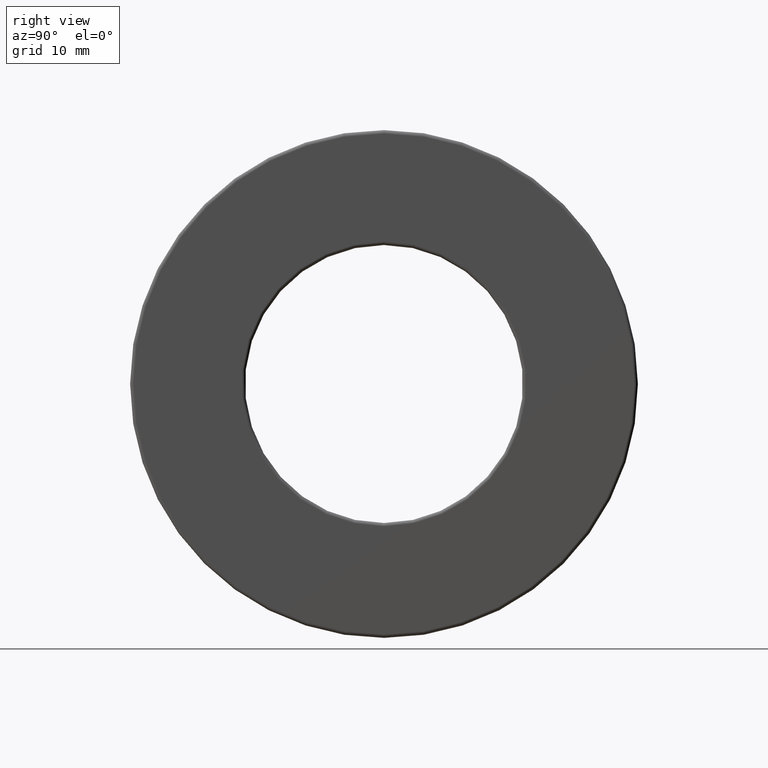
[diagram: clean part render]
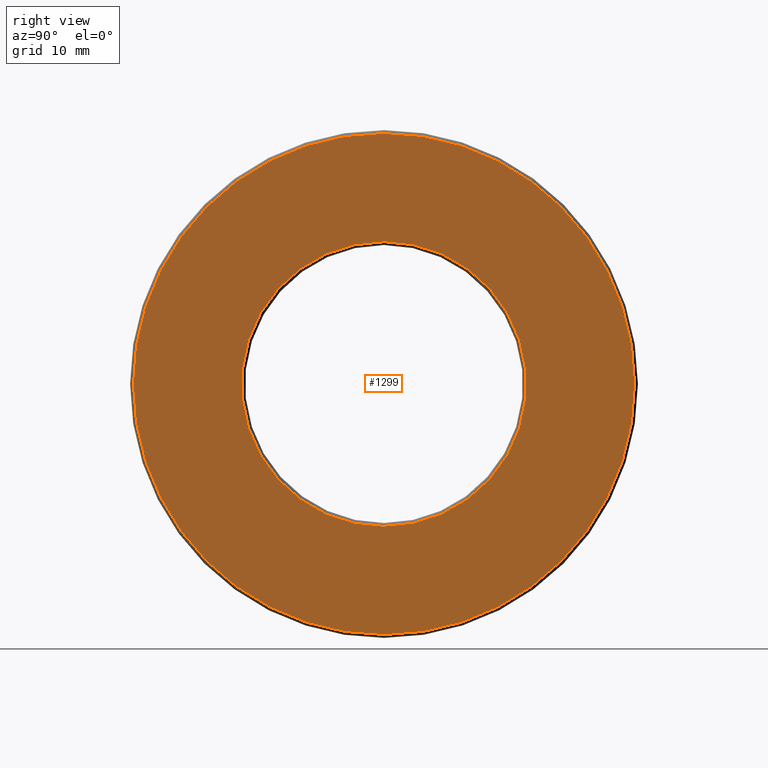
[diagram: same view with one face highlighted and labeled with its STEP entity id]
A machine part, right view. The second image highlights one B-rep face of the part: STEP entity #1299.
In plain terms, the highlighted planar face has unit normal (1, 0, 0).
Its self-contained STEP definition (entity closure, byte-faithful):
#31 = FACE_BOUND ( 'NONE', #236, .T. ) ;
#61 = DIRECTION ( 'NONE',  ( 0.0000000000000000000, 0.0000000000000000000, -1.000000000000000000 ) ) ;
#66 = CARTESIAN_POINT ( 'NONE',  ( 0.4060000000000001400, 4.388250387448826900E-017, 0.0000000000000000000 ) ) ;
#72 = PLANE ( 'NONE',  #988 ) ;
#201 = EDGE_CURVE ( 'NONE', #779, #779, #581, .T. ) ;
#236 = EDGE_LOOP ( 'NONE', ( #1217 ) ) ;
#486 = CIRCLE ( 'NONE', #1424, 0.8325000000000000200 ) ;
#509 = ORIENTED_EDGE ( 'NONE', *, *, #201, .F. ) ;
#530 = DIRECTION ( 'NONE',  ( 1.000000000000000000, 0.0000000000000000000, 0.0000000000000000000 ) ) ;
#581 = CIRCLE ( 'NONE', #898, 1.464375000000000400 ) ;
#704 = DIRECTION ( 'NONE',  ( 0.0000000000000000000, 0.0000000000000000000, 1.000000000000000000 ) ) ;
#779 = VERTEX_POINT ( 'NONE', #1005 ) ;
#872 = VERTEX_POINT ( 'NONE', #1462 ) ;
#898 = AXIS2_PLACEMENT_3D ( 'NONE', #1141, #1256, #704 ) ;
#908 = EDGE_CURVE ( 'NONE', #872, #872, #486, .T. ) ;
#988 = AXIS2_PLACEMENT_3D ( 'NONE', #66, #530, #61 ) ;
#990 = CARTESIAN_POINT ( 'NONE',  ( 0.4060000000000001900, 0.0000000000000000000, 0.0000000000000000000 ) ) ;
#1001 = DIRECTION ( 'NONE',  ( -1.000000000000000000, -0.0000000000000000000, -0.0000000000000000000 ) ) ;
#1005 = CARTESIAN_POINT ( 'NONE',  ( 0.4060000000000001400, 0.0000000000000000000, 1.464375000000000400 ) ) ;
#1057 = FACE_OUTER_BOUND ( 'NONE', #1298, .T. ) ;
#1106 = DIRECTION ( 'NONE',  ( 0.0000000000000000000, 0.0000000000000000000, 1.000000000000000000 ) ) ;
#1141 = CARTESIAN_POINT ( 'NONE',  ( 0.4060000000000001400, 0.0000000000000000000, 0.0000000000000000000 ) ) ;
#1217 = ORIENTED_EDGE ( 'NONE', *, *, #908, .T. ) ;
#1256 = DIRECTION ( 'NONE',  ( -1.000000000000000000, -0.0000000000000000000, -0.0000000000000000000 ) ) ;
#1298 = EDGE_LOOP ( 'NONE', ( #509 ) ) ;
#1299 = ADVANCED_FACE ( 'NONE', ( #31, #1057 ), #72, .T. ) ;
#1424 = AXIS2_PLACEMENT_3D ( 'NONE', #990, #1001, #1106 ) ;
#1462 = CARTESIAN_POINT ( 'NONE',  ( 0.4060000000000001900, 0.0000000000000000000, 0.8325000000000000200 ) ) ;